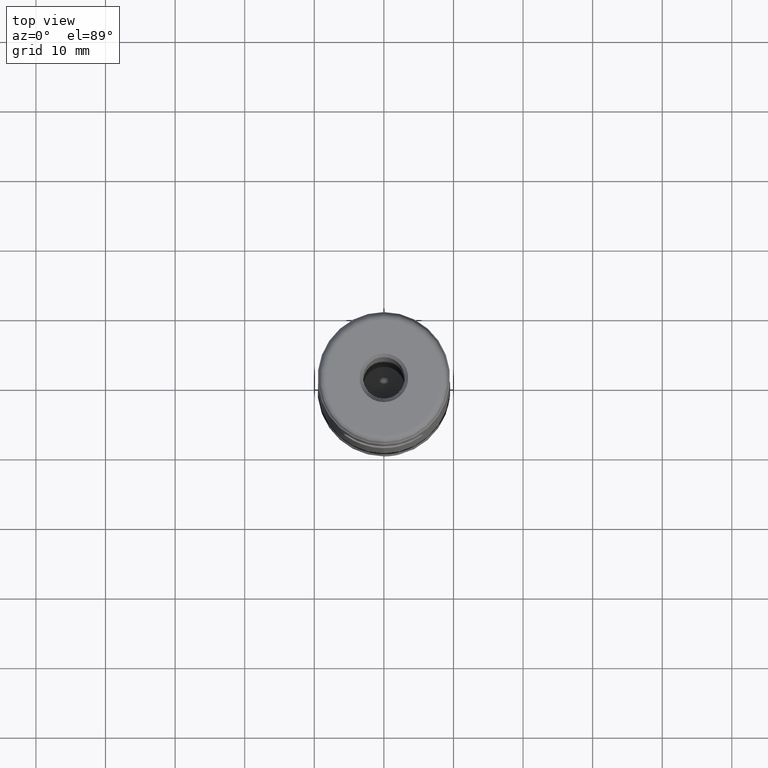
[diagram: clean part render]
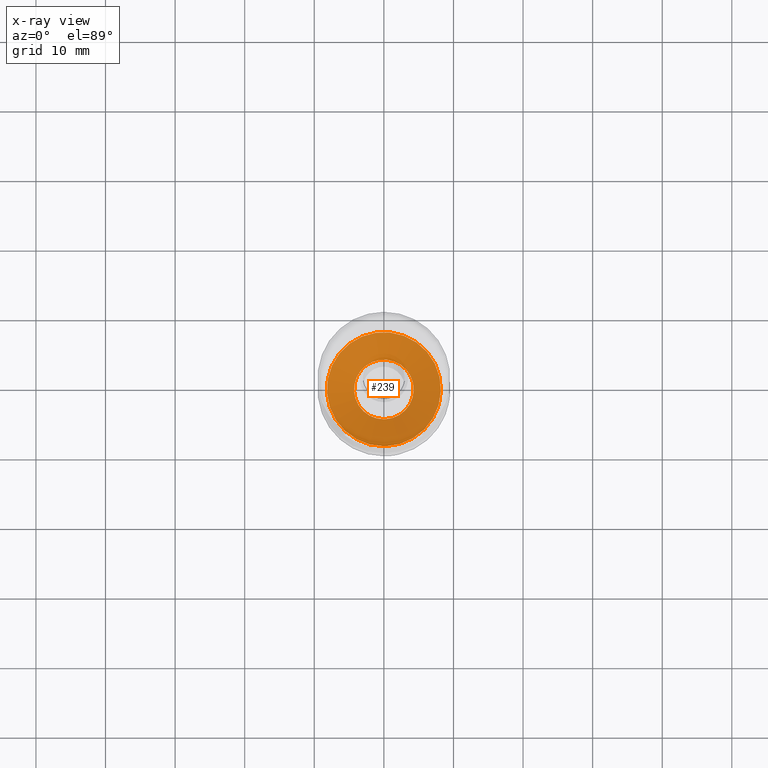
[diagram: x-ray — body ghosted, one internal face saturated and labeled with its STEP entity id]
A machine part, top view, then the same camera in x-ray: the body is ghosted and one INTERNAL B-rep face — a face not visible from any outside direction — is saturated and labeled: STEP entity #239.
In plain terms, the highlighted face is a SurfaceOfRevolution surface.
Its self-contained STEP definition (entity closure, byte-faithful):
#114=SURFACE_OF_REVOLUTION('',#722,#135);
#135=AXIS1_PLACEMENT('',#1396,#937);
#239=ADVANCED_FACE('',(#317,#318),#114,.F.);
#317=FACE_BOUND('',#407,.T.);
#318=FACE_BOUND('',#408,.T.);
#407=EDGE_LOOP('',(#515));
#408=EDGE_LOOP('',(#516));
#515=ORIENTED_EDGE('',*,*,#636,.T.);
#516=ORIENTED_EDGE('',*,*,#637,.F.);
#582=VERTEX_POINT('',#1369);
#583=VERTEX_POINT('',#1383);
#636=EDGE_CURVE('',#582,#582,#678,.T.);
#637=EDGE_CURVE('',#583,#583,#679,.T.);
#678=CIRCLE('',#790,8.19008431997518);
#679=CIRCLE('',#791,4.28775777664331);
#722=B_SPLINE_CURVE_WITH_KNOTS('',3,(#1384,#1385,#1386,#1387,#1388,#1389,
#1390,#1391,#1392,#1393,#1394,#1395),.UNSPECIFIED.,.F.,.F.,(4,1,1,1,1,1,
1,1,1,4),(0.,0.221418157861957,0.365983083750147,0.510548009638337,0.655112935526527,
0.799677861414718,0.871960324358813,0.90810155583086,0.944242787302908,
1.),.UNSPECIFIED.);
#790=AXIS2_PLACEMENT_3D('',#1368,#932,#933);
#791=AXIS2_PLACEMENT_3D('',#1382,#935,#936);
#932=DIRECTION('',(0.,1.17145536458252E-15,1.));
#933=DIRECTION('',(0.,-1.,1.1649427216033E-15));
#935=DIRECTION('',(0.,1.17145536458252E-15,1.));
#936=DIRECTION('',(0.,-1.,1.2137277101517E-15));
#937=DIRECTION('',(0.,1.17145536458252E-15,1.));
#1368=CARTESIAN_POINT('',(0.,8.56837710983387E-15,7.31430097030407));
#1369=CARTESIAN_POINT('',(0.,-8.19008431997518,7.31430097030408));
#1382=CARTESIAN_POINT('',(0.,6.04678922551503E-15,5.16177518011533));
#1383=CARTESIAN_POINT('',(0.,-4.2877577766433,5.16177518011534));
#1384=CARTESIAN_POINT('',(4.27465706591529,-0.334925422528118,5.16177547685717));
#1385=CARTESIAN_POINT('',(4.55725510686469,-0.334205159234232,5.33123658597325));
#1386=CARTESIAN_POINT('',(5.02628739494204,-0.333583474002324,5.60813497612528));
#1387=CARTESIAN_POINT('',(5.68671435767846,-0.334583934509539,5.9837744677498));
#1388=CARTESIAN_POINT('',(6.25194929058973,-0.336749153531111,6.29532607556429));
#1389=CARTESIAN_POINT('',(6.82078885468838,-0.340062428339265,6.60024754257466));
#1390=CARTESIAN_POINT('',(7.29644656763051,-0.343264134765737,6.85129190419721));
#1391=CARTESIAN_POINT('',(7.62992861439154,-0.345949977967589,7.02603426995857));
#1392=CARTESIAN_POINT('',(7.82064336503241,-0.34703182586043,7.12555117002506));
#1393=CARTESIAN_POINT('',(7.98983635492637,-0.349704019120983,7.21355473795501));
#1394=CARTESIAN_POINT('',(8.11049373047873,-0.334744555304216,7.27628364902704));
#1395=CARTESIAN_POINT('',(8.18364319228865,-0.324754167965648,7.31430097030407));
#1396=CARTESIAN_POINT('',(0.,0.,0.));